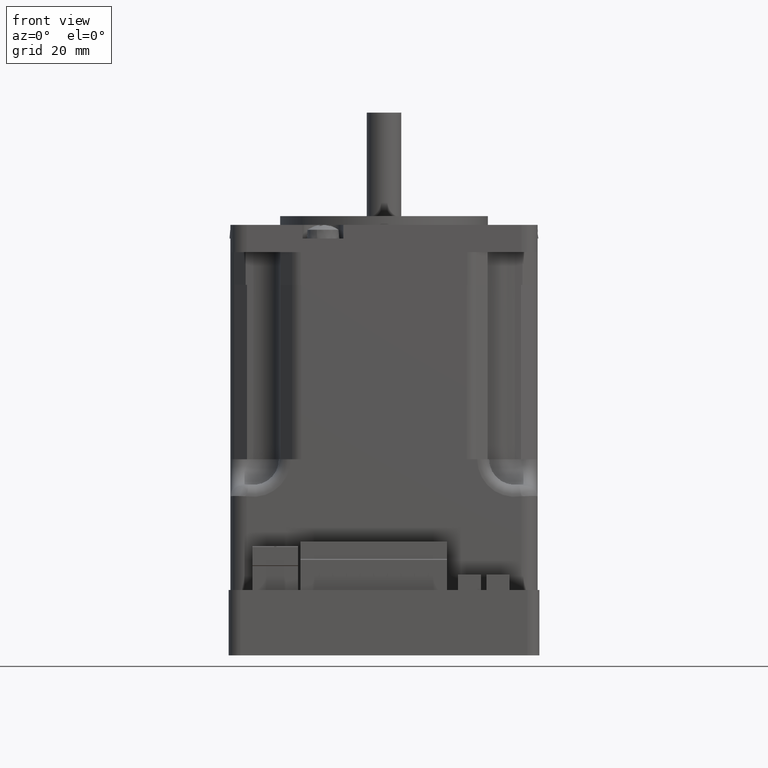
[diagram: clean part render]
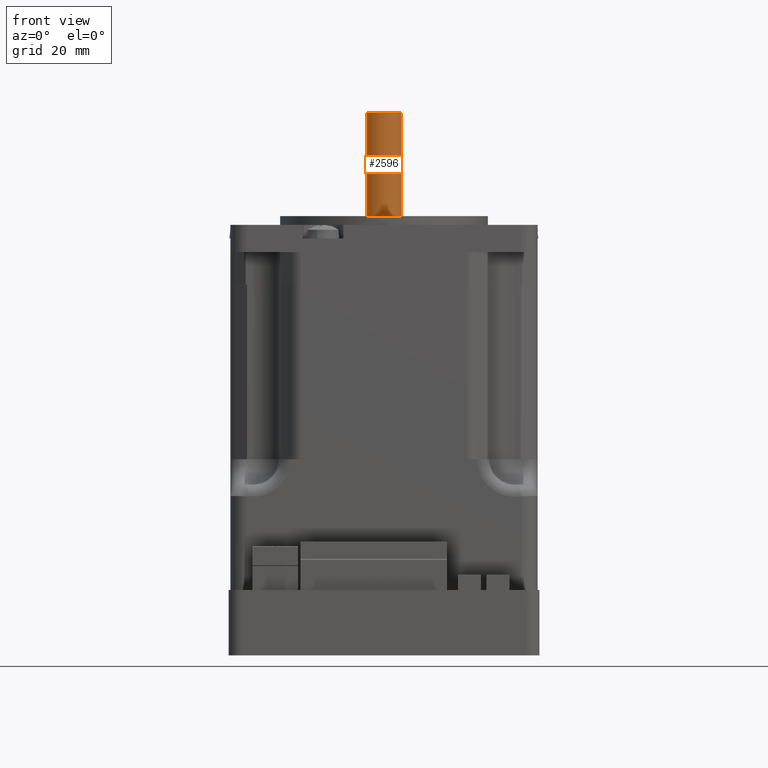
[diagram: same view with one face highlighted and labeled with its STEP entity id]
A machine part, front view. The second image highlights one B-rep face of the part: STEP entity #2596.
In plain terms, the highlighted cylindrical surface (bore or boss wall) has radius 3.175 mm, axis along (0, 0, 1).
Its self-contained STEP definition (entity closure, byte-faithful):
#530=CARTESIAN_POINT('',(3.175,3.778099E-016,12.6));
#531=VERTEX_POINT('',#530);
#532=CARTESIAN_POINT('',(0.0,0.0,12.6));
#533=DIRECTION('',(0.0,0.0,-1.0));
#534=DIRECTION('',(-1.0,0.0,0.0));
#535=AXIS2_PLACEMENT_3D('',#532,#533,#534);
#536=CIRCLE('',#535,3.175);
#537=EDGE_CURVE('',#531,#531,#536,.T.);
#2573=CARTESIAN_POINT('',(3.174999999999999,3.795250E-016,31.600000000000001));
#2574=VERTEX_POINT('',#2573);
#2575=CARTESIAN_POINT('',(-9.558326E-016,1.715143E-018,31.600000000000001));
#2576=DIRECTION('',(0.0,0.0,-1.0));
#2577=DIRECTION('',(-1.0,0.0,0.0));
#2578=AXIS2_PLACEMENT_3D('',#2575,#2576,#2577);
#2579=CIRCLE('',#2578,3.175);
#2580=EDGE_CURVE('',#2574,#2574,#2579,.T.);
#2585=CARTESIAN_POINT('',(0.0,0.0,12.6));
#2586=DIRECTION('',(0.0,0.0,1.0));
#2587=DIRECTION('',(-1.0,0.0,0.0));
#2588=AXIS2_PLACEMENT_3D('',#2585,#2586,#2587);
#2589=CYLINDRICAL_SURFACE('',#2588,3.175);
#2590=ORIENTED_EDGE('',*,*,#2580,.T.);
#2591=EDGE_LOOP('',(#2590));
#2592=FACE_OUTER_BOUND('',#2591,.T.);
#2593=ORIENTED_EDGE('',*,*,#537,.F.);
#2594=EDGE_LOOP('',(#2593));
#2595=FACE_BOUND('',#2594,.T.);
#2596=ADVANCED_FACE('',(#2592,#2595),#2589,.T.);